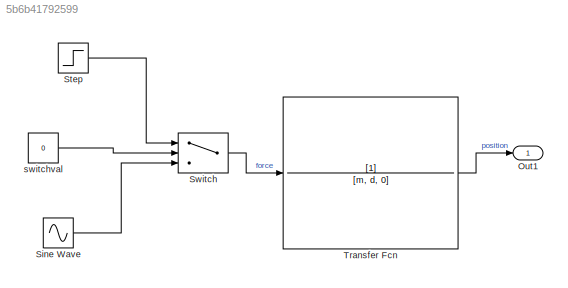
MODEL slx_5b6b41792599
KIND model
CONFIG AbsTol = auto
CONFIG EnableMultiTasking = off
CONFIG FixedStep = auto
CONFIG MaxStep = auto
CONFIG MinStep = auto
CONFIG RelTol = 1e-3
CONFIG SampleTimeConstraint = Unconstrained
CONFIG SolverName = VariableStepAuto
CONFIG StartTime = 0.0
CONFIG StopTime = 20
BLOCK [Outport] Out1
BLOCK [Sin] Sine Wave
  Frequency = 10
  SampleTime = 0
BLOCK [Step] Step
  SampleTime = 0
  Time = 0
BLOCK [Switch] Switch
  Criteria = u2 > Threshold
  InputSameDT = off
  SaturateOnIntegerOverflow = off
BLOCK [TransferFcn] Transfer Fcn
  Denominator = [m, d, 0]
BLOCK [Constant] switchval
  Value = 0
LINE Sine Wave:1 -> Switch:3
LINE Step:1 -> Switch:1
LINE Switch:1 -> Transfer Fcn:1
LINE Transfer Fcn:1 -> Out1:1
LINE switchval:1 -> Switch:2
